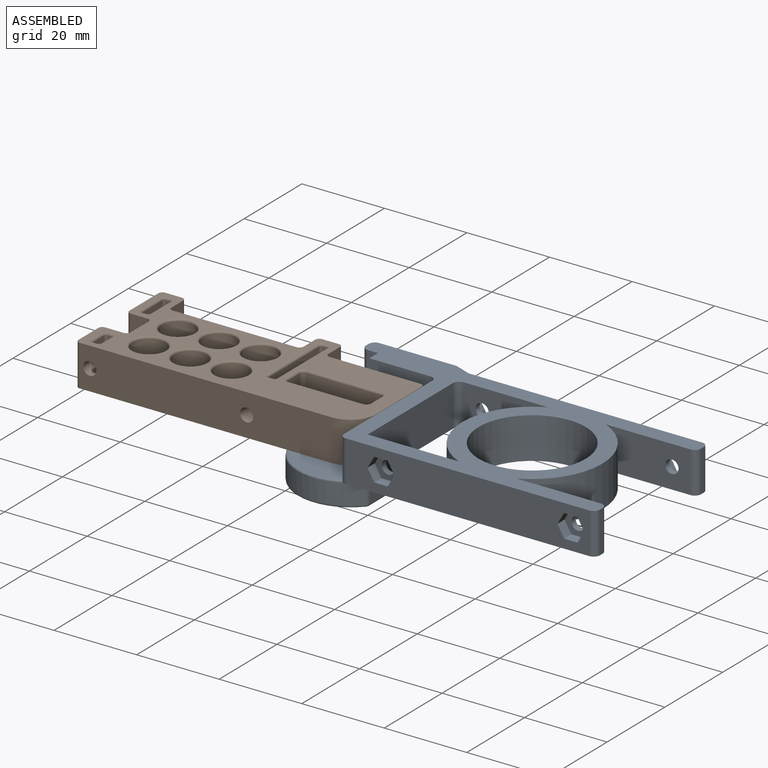
[diagram: assembled view]
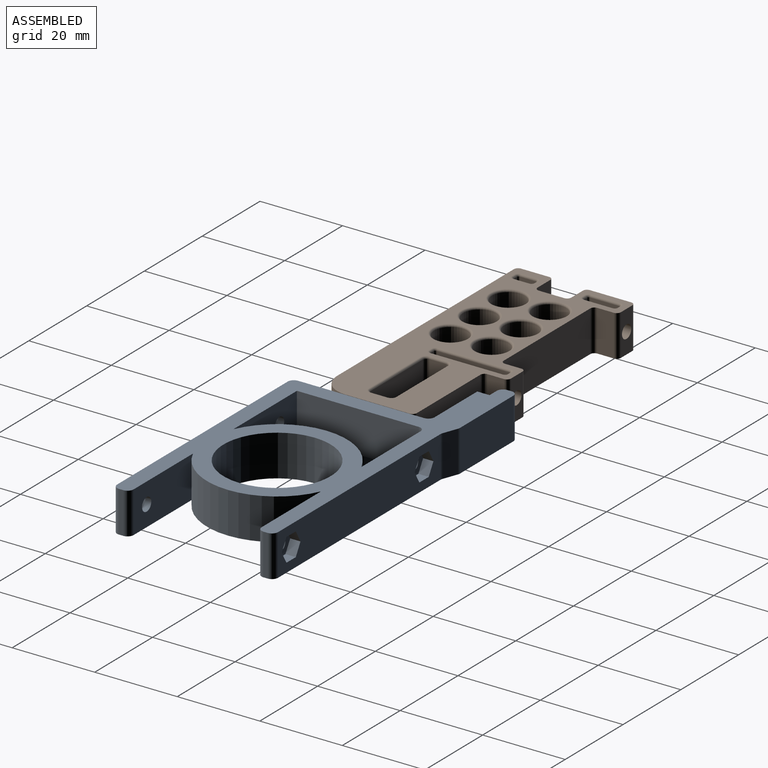
[diagram: assembled view, second angle]
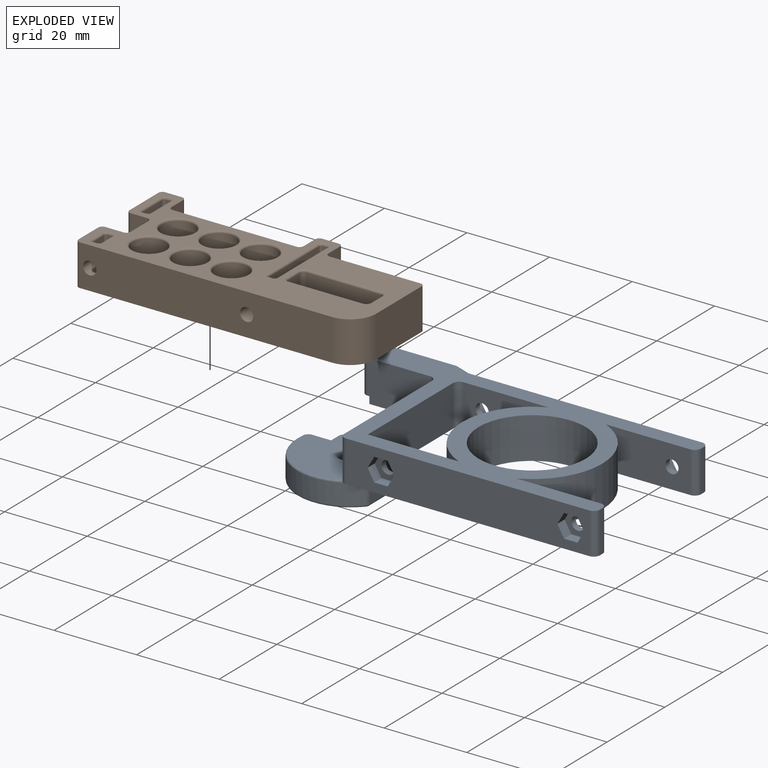
[diagram: exploded view]
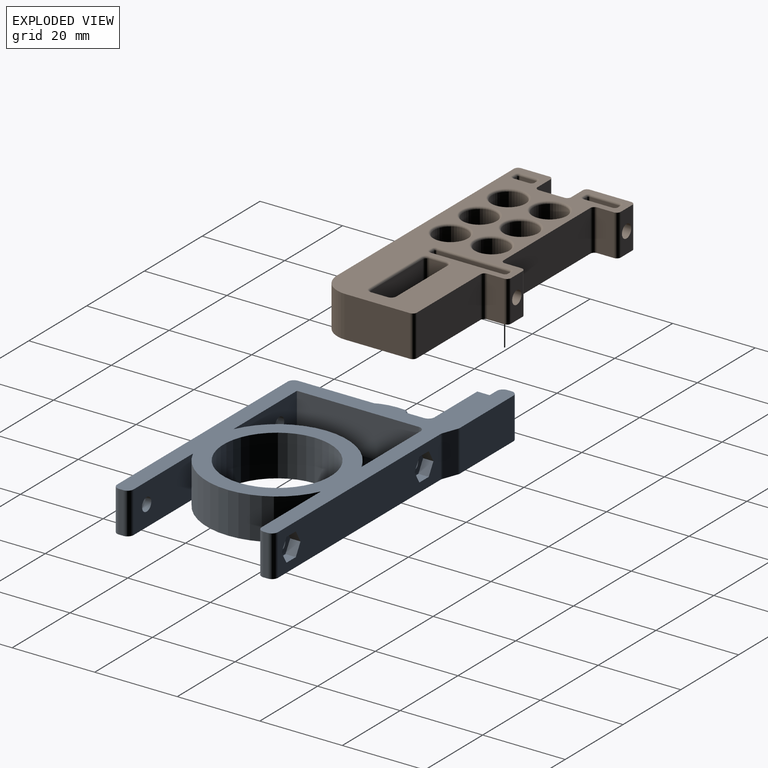
[diagram: exploded view, second angle]
ASSEMBLY  parts=2 mates=2
PART A: 93 faces, bbox 82.3x42.1x16 mm
  f0: cylinder r=1.57mm len=3.15mm, axis (0,0,-1), area 29.7mm2, adj f9,f61
  f1: plane 59x10mm, normal (0,-1,0), area 535.1mm2, adj f10,f27,f42,f43,f44,f45,f46,f47
  f2: plane 56.23x10mm, normal (0,1,0), area 507.4mm2, adj f10,f27,f28,f29,f30,f31,f32,f33
  f3: cylinder r=13mm len=22.61mm, axis (0,0,-1), area 166.9mm2, adj f10,f71,f74,f77,f81,f87
  f4: plane 29.5x15.5mm, normal (1,0,0), area 367.9mm2, adj f10,f22,f27,f64,f74,f75,f78
  f5: plane 14x5.5mm, normal (0,1,0), area 71.2mm2, adj f10,f12,f75,f76,f82,f88
  f6: plane 5x2.5mm, normal (-1,0,0), area 12.5mm2, adj f7,f76,f86,f92
  f7: plane 5x4.4mm, normal (0,1,0), area 22mm2, adj f6,f77,f85,f91
  f8: plane 19x18.5mm, normal (0,0,1), area 240.1mm2, adj f12,f62,f87,f88,f89,f90,f91,f92
  f9: plane 22x19mm, normal (0,0,-1), area 339.2mm2, adj f0,f78,f79,f80,f81,f82,f83,f84
  f10: plane 82.27x40.5mm, normal (0,0,-1), area 1031.2mm2, adj f1,f2,f3,f4,f5,f11,f12,f13
  f11: plane 14.77x10mm, normal (0,-1,0), area 147.7mm2, adj f10,f24,f27,f63
  f12: plane 30.5x10.5mm, normal (-1,0,0), area 305.1mm2, adj f5,f8,f10,f27,f63,f71,f87,f88
  f13: plane 10x1mm, normal (1,0,0), area 10mm2, adj f10,f27,f72,f73
  f14: plane 20.52x10mm, normal (0,1,0), area 197.1mm2, adj f10,f15,f27,f57,f73
  f15: cylinder r=17mm len=31mm, axis (0,0,-1), area 390.2mm2, adj f10,f14,f16,f27
  f16: plane 20.52x10mm, normal (0,-1,0), area 197.1mm2, adj f10,f15,f27,f59,f65
  f17: plane 10x1mm, normal (1,0,0), area 10mm2, adj f10,f27,f65,f66
  f18: plane 10x3.51mm, normal (0.35,0.94,0), area 37.4mm2, adj f10,f27,f67,f68
  f19: plane 18.48x10mm, normal (0,1,0), area 184.8mm2, adj f10,f27,f68,f69
  f20: plane 10x1mm, normal (-1,0,0), area 10mm2, adj f10,f27,f69,f70
  f21: plane 10x2.5mm, normal (0,-1,0), area 25mm2, adj f10,f24,f27,f70
  f22: plane 22.02x10mm, normal (0,1,0), area 212.1mm2, adj f4,f10,f25,f27,f56
  f23: plane 20.52x10mm, normal (0,-1,0), area 197.1mm2, adj f10,f25,f27,f58,f64
  f24: plane 10x3mm, normal (-1,0,0), area 30mm2, adj f10,f11,f21,f27
  f25: cylinder r=17mm len=31mm, axis (0,0,-1), area 390.2mm2, adj f10,f22,f23,f27
  f26: cylinder r=13mm len=26mm, axis (0,0,-1), area 816.8mm2, adj f10,f27
  f27: plane 82.27x40.5mm, normal (0,0,1), area 1099.3mm2, adj f1,f2,f4,f11,f12,f13,f14,f15
  f28: plane 2.81x2.5mm, normal (-0.87,0,0.5), area 8.1mm2, adj f2,f29,f33,f34
  f29: plane 3.25x2.5mm, normal (0,0,1), area 8.1mm2, adj f2,f28,f30,f34
  f30: plane 2.81x2.5mm, normal (0.87,0,0.5), area 8.1mm2, adj f2,f29,f31,f34
  f31: plane 2.81x2.5mm, normal (0.87,0,-0.5), area 8.1mm2, adj f2,f30,f32,f34
  f32: plane 3.25x2.5mm, normal (0,0,-1), area 8.1mm2, adj f2,f31,f33,f34
  f33: plane 2.81x2.5mm, normal (-0.87,0,-0.5), area 8.1mm2, adj f2,f28,f32,f34
  f34: plane 6.5x5.63mm, normal (0,1,0), area 19.4mm2, adj f28,f29,f30,f31,f32,f33,f59
  f35: plane 2.81x2.5mm, normal (0.87,0,-0.5), area 8.1mm2, adj f2,f36,f40,f41
  f36: plane 3.25x2.5mm, normal (0,0,-1), area 8.1mm2, adj f2,f35,f37,f41
  f37: plane 2.81x2.5mm, normal (-0.87,0,-0.5), area 8.1mm2, adj f2,f36,f38,f41
  f38: plane 2.81x2.5mm, normal (-0.87,0,0.5), area 8.1mm2, adj f2,f37,f39,f41
  f39: plane 3.25x2.5mm, normal (0,0,1), area 8.1mm2, adj f2,f38,f40,f41
  f40: plane 2.81x2.5mm, normal (0.87,0,0.5), area 8.1mm2, adj f2,f35,f39,f41
  f41: plane 6.5x5.63mm, normal (0,1,0), area 19.4mm2, adj f35,f36,f37,f38,f39,f40,f58
  f42: plane 2.81x2.5mm, normal (-0.87,0,-0.5), area 8.1mm2, adj f1,f43,f47,f48
  f43: plane 3.25x2.5mm, normal (0,0,-1), area 8.1mm2, adj f1,f42,f44,f48
  f44: plane 2.81x2.5mm, normal (0.87,0,-0.5), area 8.1mm2, adj f1,f43,f45,f48
  f45: plane 2.81x2.5mm, normal (0.87,0,0.5), area 8.1mm2, adj f1,f44,f46,f48
  f46: plane 3.25x2.5mm, normal (0,0,1), area 8.1mm2, adj f1,f45,f47,f48
  f47: plane 2.81x2.5mm, normal (-0.87,0,0.5), area 8.1mm2, adj f1,f42,f46,f48
  f48: plane 6.5x5.63mm, normal (0,-1,0), area 19.4mm2, adj f42,f43,f44,f45,f46,f47,f57
  f49: plane 2.81x2.5mm, normal (-0.87,0,-0.5), area 8.1mm2, adj f1,f50,f54,f55
  f50: plane 3.25x2.5mm, normal (0,0,-1), area 8.1mm2, adj f1,f49,f51,f55
  f51: plane 2.81x2.5mm, normal (0.87,0,-0.5), area 8.1mm2, adj f1,f50,f52,f55
  f52: plane 2.81x2.5mm, normal (0.87,0,0.5), area 8.1mm2, adj f1,f51,f53,f55
  f53: plane 3.25x2.5mm, normal (0,0,1), area 8.1mm2, adj f1,f52,f54,f55
  f54: plane 2.81x2.5mm, normal (-0.87,0,0.5), area 8.1mm2, adj f1,f49,f53,f55
  f55: plane 6.5x5.63mm, normal (0,-1,0), area 19.4mm2, adj f49,f50,f51,f52,f53,f54,f56
  f56: cylinder r=1.6mm len=3.2mm, axis (0,1,0), area 15.1mm2, adj f22,f55
  f57: cylinder r=1.6mm len=3.2mm, axis (0,1,0), area 15.1mm2, adj f14,f48
  f58: cylinder r=1.6mm len=3.2mm, axis (0,1,0), area 15.1mm2, adj f23,f41
  f59: cylinder r=1.6mm len=3.2mm, axis (0,1,0), area 15.1mm2, adj f16,f34
  f60: cylinder r=2.5mm len=5mm, axis (0,0,1), area 23.6mm2, adj f61,f62
  f61: plane 5x5mm, normal (0,0,1), area 11.8mm2, adj f0,f60
  f62: torus R=4mm, axis (0,0,1), area 45.1mm2, adj f8,f60
  f63: cylinder r=1.5mm len=10mm, axis (0,0,1), area 23.6mm2, adj f10,f11,f12,f27
  f64: cylinder r=1.5mm len=10mm, axis (0,0,1), area 23.6mm2, adj f4,f10,f23,f27
  f65: cylinder r=1.5mm len=10mm, axis (0,0,1), area 23.6mm2, adj f10,f16,f17,f27
  f66: cylinder r=1.5mm len=10mm, axis (0,0,1), area 23.6mm2, adj f2,f10,f17,f27
  f67: cylinder r=1.5mm len=10mm, axis (0,0,1), area 5.4mm2, adj f2,f10,f18,f27
  f68: cylinder r=1.5mm len=10mm, axis (0,0,-1), area 5.4mm2, adj f10,f18,f19,f27
  f69: cylinder r=1.5mm len=10mm, axis (0,0,-1), area 23.6mm2, adj f10,f19,f20,f27
  f70: cylinder r=1.5mm len=10mm, axis (0,0,-1), area 23.6mm2, adj f10,f20,f21,f27
  f71: cylinder r=1.5mm len=10.5mm, axis (0,0,1), area 23.6mm2, adj f1,f3,f10,f12,f27,f87
  f72: cylinder r=1.5mm len=10mm, axis (0,0,-1), area 23.6mm2, adj f1,f10,f13,f27
  f73: cylinder r=1.5mm len=10mm, axis (0,0,-1), area 23.6mm2, adj f10,f13,f14,f27
  f74: cylinder r=1.5mm len=5.5mm, axis (0,0,-1), area 6.1mm2, adj f3,f4,f10,f79
  f75: cylinder r=1.5mm len=5.5mm, axis (0,0,-1), area 13mm2, adj f4,f5,f10,f80
  f76: cylinder r=1.5mm len=5mm, axis (0,0,1), area 11.8mm2, adj f5,f6,f84,f90
  f77: cylinder r=1.5mm len=5mm, axis (0,0,-1), area 10.8mm2, adj f3,f7,f83,f89
  f78: cylinder r=0.5mm len=13.25mm, axis (0,1,0), area 10.4mm2, adj f4,f9,f79,f80
  f79: torus R=1mm, axis (0,0,1), area 0.8mm2, adj f9,f74,f78,f81
  f80: torus R=1mm, axis (0,0,1), area 1.6mm2, adj f9,f75,f78,f82
  f81: torus R=12.5mm, axis (0,0,1), area 25.5mm2, adj f3,f9,f79,f83
  f82: cylinder r=0.5mm len=14mm, axis (-1,0,0), area 11mm2, adj f5,f9,f80,f84
  f83: torus R=1mm, axis (0,0,1), area 1.5mm2, adj f9,f77,f81,f85
  f84: torus R=1mm, axis (0,0,1), area 1.6mm2, adj f9,f76,f82,f86
  f85: cylinder r=0.5mm len=4.9mm, axis (-1,0,0), area 3.6mm2, adj f7,f9,f83,f86
  f86: cylinder r=0.5mm len=3mm, axis (0,-1,0), area 2.1mm2, adj f6,f9,f84,f85
  f87: torus R=12.5mm, axis (0,0,1), area 22.1mm2, adj f3,f8,f12,f71,f89
  f88: cylinder r=0.5mm len=11.5mm, axis (1,0,0), area 9mm2, adj f5,f8,f12,f90
  f89: torus R=1mm, axis (0,0,1), area 1.5mm2, adj f8,f77,f87,f91
  f90: torus R=1mm, axis (0,0,1), area 1.6mm2, adj f8,f76,f88,f92
  f91: cylinder r=0.5mm len=4.9mm, axis (1,0,0), area 3.6mm2, adj f7,f8,f89,f92
  f92: cylinder r=0.5mm len=3mm, axis (0,1,0), area 2.1mm2, adj f6,f8,f90,f91
PART B: 217 faces, bbox 68.4x29x11.6 mm
  f0: cylinder r=1.6mm len=29mm, axis (0,1,0), area 197.3mm2, adj f17,f27,f32,f175,f179,f181,f183,f184
  f1: cylinder r=1.6mm len=8.82mm, axis (0,1,0), area 60.7mm2, adj f27,f40,f138,f143,f144,f147,f148,f150
  f2: cylinder r=1.6mm len=12mm, axis (0,1,0), area 76.5mm2, adj f36,f38,f98,f103,f104,f107,f108,f110
  f3: plane 68.44x29mm, normal (0,0,-1), area 950.3mm2, adj f17,f27,f28,f29,f30,f31,f32,f33
  f4: plane 68.44x29mm, normal (0,0,1), area 954.5mm2, adj f27,f28,f29,f30,f31,f32,f33,f34
  f5: plane 2.46x1mm, normal (0,1,0), area 2.4mm2, adj f93,f97,f98,f99
  f6: plane 7x3.03mm, normal (1,0,0), area 21.2mm2, adj f96,f97,f106,f107
  f7: plane 7x3.03mm, normal (1,0,0), area 21.2mm2, adj f119,f120,f128,f129
  f8: plane 2.46x1mm, normal (0,-1,0), area 2.4mm2, adj f101,f106,f109,f112
  f9: plane 2.46x1mm, normal (0,1,0), area 2.4mm2, adj f133,f137,f138,f139
  f10: plane 3.82x3.03mm, normal (1,0,0), area 11.6mm2, adj f136,f137,f146,f147
  f11: plane 3.82x3.03mm, normal (1,0,0), area 11.6mm2, adj f159,f160,f168,f169
  f12: plane 2.46x1mm, normal (0,-1,0), area 2.4mm2, adj f141,f146,f149,f152
  f13: plane 7x3.03mm, normal (-1,0,0), area 21.2mm2, adj f99,f100,f108,f109
  f14: plane 7x3.03mm, normal (-1,0,0), area 21.2mm2, adj f116,f117,f126,f127
  f15: plane 3.82x3.03mm, normal (-1,0,0), area 11.6mm2, adj f139,f140,f148,f149
  f16: plane 3.82x3.03mm, normal (-1,0,0), area 11.6mm2, adj f156,f157,f166,f167
  f17: plane 19.5x3.75mm, normal (-1,0,0), area 69.6mm2, adj f0,f3,f19,f22,f173,f175,f178,f184
  f18: plane 17.5x3.03mm, normal (-1,0,0), area 53mm2, adj f191,f192,f200,f201
  f19: plane 2.65x1.5mm, normal (0,1,0), area 3.7mm2, adj f17,f178,f182,f184
  f20: plane 17.5x3.03mm, normal (1,0,0), area 53mm2, adj f176,f177,f181,f182
  f21: plane 17.5x3.03mm, normal (1,0,0), area 53mm2, adj f188,f189,f198,f199
  f22: plane 2.65x1.5mm, normal (0,-1,0), area 3.7mm2, adj f17,f173,f175,f176
  f23: plane 2.46x1mm, normal (0,1,0), area 2.4mm2, adj f193,f198,f201,f204
  f24: plane 9x4mm, normal (-1,0,0), area 36mm2, adj f73,f76,f80,f88
  f25: plane 18x9mm, normal (0,1,0), area 162mm2, adj f73,f74,f77,f85
  f26: plane 9x4mm, normal (1,0,0), area 36mm2, adj f74,f75,f81,f89
  f27: plane 61.32x10mm, normal (0,-1,0), area 597.1mm2, adj f0,f1,f3,f4,f58,f72
  f28: cylinder r=6.3mm len=10mm, axis (0,0,-1), area 94.6mm2, adj f3,f4,f58,f59
  f29: plane 15.88x10mm, normal (1,0,0), area 158.8mm2, adj f3,f4,f59,f60
  f30: plane 22x10mm, normal (0,1,0), area 220mm2, adj f3,f4,f60,f61
  f31: plane 10x4mm, normal (1,0,0), area 40mm2, adj f3,f4,f61,f62
  f32: plane 10x4mm, normal (0,1,0), area 32mm2, adj f0,f3,f4,f62,f63
  f33: plane 10x4mm, normal (-1,0,0), area 40mm2, adj f3,f4,f63,f64
  f34: plane 30x10mm, normal (0,1,0), area 300mm2, adj f3,f4,f64,f65
  f35: plane 10x4mm, normal (1,0,0), area 40mm2, adj f3,f4,f65,f66
  f36: plane 10x4mm, normal (0,1,0), area 32mm2, adj f2,f3,f4,f66,f67
  f37: plane 10x10mm, normal (-1,0,0), area 100mm2, adj f3,f4,f67,f68
  f38: plane 10x4mm, normal (0,-1,0), area 32mm2, adj f2,f3,f4,f68,f69
  f39: plane 10x6.18mm, normal (-1,0,0), area 61.8mm2, adj f3,f4,f69,f70
  f40: plane 10x4.44mm, normal (0,1,0), area 36.3mm2, adj f1,f3,f4,f70,f71
  f41: plane 2.46x1mm, normal (0,1,0), area 2.4mm2, adj f118,f127,f128,f132
  f42: plane 2.46x1mm, normal (0,-1,0), area 2.4mm2, adj f113,f116,f120,f121
  f43: plane 2.46x1mm, normal (0,1,0), area 2.4mm2, adj f158,f167,f168,f172
  f44: plane 2.46x1mm, normal (0,-1,0), area 2.4mm2, adj f153,f156,f160,f161
  f45: plane 18x9mm, normal (0,-1,0), area 162mm2, adj f75,f76,f84,f92
  f46: plane 10x6.82mm, normal (-1,0,0), area 68.2mm2, adj f3,f4,f71,f72
  f47: cylinder r=4mm len=9mm, axis (0,0,-1), area 226.2mm2, adj f210,f216
  f48: cylinder r=4mm len=9mm, axis (0,0,-1), area 226.2mm2, adj f209,f215
  f49: cylinder r=4mm len=9mm, axis (0,0,-1), area 226.2mm2, adj f208,f214
  f50: cylinder r=4mm len=9mm, axis (0,0,-1), area 226.2mm2, adj f207,f213
  f51: cylinder r=4mm len=9mm, axis (0,0,-1), area 226.2mm2, adj f206,f212
  f52: cylinder r=4mm len=9mm, axis (0,0,-1), area 226.2mm2, adj f205,f211
  f53: plane 2.46x1mm, normal (0,-1,0), area 2.4mm2, adj f185,f189,f190,f191
  f54: cylinder r=1.57mm len=6mm, axis (0,0,1), area 59.4mm2, adj f56,f57
  f55: cylinder r=2.08mm len=4.15mm, axis (0,0,1), area 8.3mm2, adj f3,f57
  f56: plane 3.15x3.15mm, normal (0,0,-1), area 7.8mm2, adj f54
  f57: torus R=1.07mm, axis (0,0,-1), area 12.5mm2, adj f54,f55
  f58: cylinder r=1mm len=10mm, axis (0,0,-1), area 0.3mm2, adj f3,f4,f27,f28
  f59: cylinder r=1mm len=10mm, axis (0,0,-1), area 0.3mm2, adj f3,f4,f28,f29
  f60: cylinder r=1mm len=10mm, axis (0,0,-1), area 15.7mm2, adj f3,f4,f29,f30
  f61: cylinder r=1mm len=10mm, axis (0,0,1), area 15.7mm2, adj f3,f4,f30,f31
  f62: cylinder r=1mm len=10mm, axis (0,0,-1), area 15.7mm2, adj f3,f4,f31,f32
  f63: cylinder r=1mm len=10mm, axis (0,0,-1), area 15.7mm2, adj f3,f4,f32,f33
  f64: cylinder r=1mm len=10mm, axis (0,0,1), area 15.7mm2, adj f3,f4,f33,f34
  f65: cylinder r=1mm len=10mm, axis (0,0,1), area 15.7mm2, adj f3,f4,f34,f35
  f66: cylinder r=1mm len=10mm, axis (0,0,1), area 15.7mm2, adj f3,f4,f35,f36
  f67: cylinder r=1mm len=10mm, axis (0,0,1), area 15.7mm2, adj f3,f4,f36,f37
  f68: cylinder r=1mm len=10mm, axis (0,0,-1), area 15.7mm2, adj f3,f4,f37,f38
  f69: cylinder r=1mm len=10mm, axis (0,0,-1), area 15.7mm2, adj f3,f4,f38,f39
  f70: cylinder r=1mm len=10mm, axis (0,0,1), area 15.7mm2, adj f3,f4,f39,f40
  f71: cylinder r=1mm len=10mm, axis (0,0,1), area 15.7mm2, adj f3,f4,f40,f46
  f72: cylinder r=1mm len=10mm, axis (0,0,-1), area 15.7mm2, adj f3,f4,f27,f46
  f73: cylinder r=1mm len=9mm, axis (0,0,1), area 14.1mm2, adj f24,f25,f78,f86
  f74: cylinder r=1mm len=9mm, axis (0,0,1), area 14.1mm2, adj f25,f26,f79,f87
  f75: cylinder r=1mm len=9mm, axis (0,0,-1), area 14.1mm2, adj f26,f45,f83,f91
  f76: cylinder r=1mm len=9mm, axis (0,0,-1), area 14.1mm2, adj f24,f45,f82,f90
  f77: cylinder r=0.5mm len=18mm, axis (1,0,0), area 14.1mm2, adj f4,f25,f78,f79
  f78: torus R=1.5mm, axis (0,0,1), area 1.5mm2, adj f4,f73,f77,f80
  f79: torus R=1.5mm, axis (0,0,1), area 1.5mm2, adj f4,f74,f77,f81
  f80: cylinder r=0.5mm len=4mm, axis (0,1,0), area 3.1mm2, adj f4,f24,f78,f82
  f81: cylinder r=0.5mm len=4mm, axis (0,-1,0), area 3.1mm2, adj f4,f26,f79,f83
  f82: torus R=1.5mm, axis (0,0,1), area 1.5mm2, adj f4,f76,f80,f84
  f83: torus R=1.5mm, axis (0,0,1), area 1.5mm2, adj f4,f75,f81,f84
  f84: cylinder r=0.5mm len=18mm, axis (-1,0,0), area 14.1mm2, adj f4,f45,f82,f83
  f85: cylinder r=0.5mm len=18mm, axis (-1,0,0), area 14.1mm2, adj f3,f25,f86,f87
  f86: torus R=1.5mm, axis (0,0,1), area 1.5mm2, adj f3,f73,f85,f88
  f87: torus R=1.5mm, axis (0,0,1), area 1.5mm2, adj f3,f74,f85,f89
  f88: cylinder r=0.5mm len=4mm, axis (0,-1,0), area 3.1mm2, adj f3,f24,f86,f90
  f89: cylinder r=0.5mm len=4mm, axis (0,1,0), area 3.1mm2, adj f3,f26,f87,f91
  f90: torus R=1.5mm, axis (0,0,1), area 1.5mm2, adj f3,f76,f88,f92
  f91: torus R=1.5mm, axis (0,0,1), area 1.5mm2, adj f3,f75,f89,f92
  f92: cylinder r=0.5mm len=18mm, axis (1,0,0), area 14.1mm2, adj f3,f45,f90,f91
  f93: cylinder r=0.5mm len=1mm, axis (-1,0,0), area 0.8mm2, adj f3,f5,f94,f95
  f94: torus R=1mm, axis (0,0,1), area 0.8mm2, adj f3,f93,f96,f97
  f95: torus R=1mm, axis (0,0,1), area 0.8mm2, adj f3,f93,f99,f100
  f96: cylinder r=0.5mm len=7mm, axis (0,1,0), area 5.5mm2, adj f3,f6,f94,f102
  f97: cylinder r=0.5mm len=3.03mm, axis (0,0,1), area 2.2mm2, adj f5,f6,f94,f103
  f98: torus R=2.1mm, axis (0,1,0), area 0.7mm2, adj f2,f5,f103,f104
  f99: cylinder r=0.5mm len=3.03mm, axis (0,0,-1), area 2.2mm2, adj f5,f13,f95,f104
  f100: cylinder r=0.5mm len=7mm, axis (0,-1,0), area 5.5mm2, adj f3,f13,f95,f105
  f101: cylinder r=0.5mm len=1mm, axis (1,0,0), area 0.8mm2, adj f3,f8,f102,f105
  f102: torus R=1mm, axis (0,0,1), area 0.8mm2, adj f3,f96,f101,f106
  f103: bspline ~1.14x0.96mm, area 0.6mm2, adj f2,f97,f98,f107
  f104: bspline ~1.18x0.94mm, area 0.6mm2, adj f2,f98,f99,f108
  f105: torus R=1mm, axis (0,0,1), area 0.8mm2, adj f3,f100,f101,f109
  f106: cylinder r=0.5mm len=3.03mm, axis (0,0,-1), area 2.2mm2, adj f6,f8,f102,f110
  f107: cylinder r=0.5mm len=7mm, axis (0,1,0), area 2.7mm2, adj f2,f6,f103,f110
  f108: cylinder r=0.5mm len=7mm, axis (0,1,0), area 2.7mm2, adj f2,f13,f104,f111
  f109: cylinder r=0.5mm len=3.03mm, axis (0,0,1), area 2.2mm2, adj f8,f13,f105,f111
  f110: bspline ~1.18x0.94mm, area 0.6mm2, adj f2,f106,f107,f112
  f111: bspline ~1.14x0.96mm, area 0.6mm2, adj f2,f108,f109,f112
  f112: torus R=2.1mm, axis (0,1,0), area 0.7mm2, adj f2,f8,f110,f111
  f113: cylinder r=0.5mm len=1mm, axis (-1,0,0), area 0.8mm2, adj f4,f42,f114,f115
  f114: torus R=1mm, axis (0,0,1), area 0.8mm2, adj f4,f113,f116,f117
  f115: torus R=1mm, axis (0,0,1), area 0.8mm2, adj f4,f113,f119,f120
  f116: cylinder r=0.5mm len=3.03mm, axis (0,0,1), area 2.2mm2, adj f14,f42,f114,f122
  f117: cylinder r=0.5mm len=7mm, axis (0,1,0), area 5.5mm2, adj f4,f14,f114,f123
  f118: cylinder r=0.5mm len=1mm, axis (1,0,0), area 0.8mm2, adj f4,f41,f123,f124
  f119: cylinder r=0.5mm len=7mm, axis (0,-1,0), area 5.5mm2, adj f4,f7,f115,f124
  f120: cylinder r=0.5mm len=3.03mm, axis (0,0,-1), area 2.2mm2, adj f7,f42,f115,f125
  f121: torus R=2.1mm, axis (0,1,0), area 0.7mm2, adj f2,f42,f122,f125
  f122: bspline ~1.18x0.94mm, area 0.6mm2, adj f2,f116,f121,f126
  f123: torus R=1mm, axis (0,0,1), area 0.8mm2, adj f4,f117,f118,f127
  f124: torus R=1mm, axis (0,0,1), area 0.8mm2, adj f4,f118,f119,f128
  f125: bspline ~1.14x0.96mm, area 0.6mm2, adj f2,f120,f121,f129
  f126: cylinder r=0.5mm len=7mm, axis (0,1,0), area 2.7mm2, adj f2,f14,f122,f130
  f127: cylinder r=0.5mm len=3.03mm, axis (0,0,-1), area 2.2mm2, adj f14,f41,f123,f130
  f128: cylinder r=0.5mm len=3.03mm, axis (0,0,1), area 2.2mm2, adj f7,f41,f124,f131
  f129: cylinder r=0.5mm len=7mm, axis (0,1,0), area 2.7mm2, adj f2,f7,f125,f131
  f130: bspline ~1.14x0.96mm, area 0.6mm2, adj f2,f126,f127,f132
  f131: bspline ~1.18x0.94mm, area 0.6mm2, adj f2,f128,f129,f132
  f132: torus R=2.1mm, axis (0,1,0), area 0.7mm2, adj f2,f41,f130,f131
  f133: cylinder r=0.5mm len=1mm, axis (-1,0,0), area 0.8mm2, adj f3,f9,f134,f135
  f134: torus R=1mm, axis (0,0,1), area 0.8mm2, adj f3,f133,f136,f137
  f135: torus R=1mm, axis (0,0,1), area 0.8mm2, adj f3,f133,f139,f140
  f136: cylinder r=0.5mm len=3.82mm, axis (0,1,0), area 3mm2, adj f3,f10,f134,f142
  f137: cylinder r=0.5mm len=3.03mm, axis (0,0,1), area 2.2mm2, adj f9,f10,f134,f143
  f138: torus R=2.1mm, axis (0,1,0), area 0.7mm2, adj f1,f9,f143,f144
  f139: cylinder r=0.5mm len=3.03mm, axis (0,0,-1), area 2.2mm2, adj f9,f15,f135,f144
  f140: cylinder r=0.5mm len=3.82mm, axis (0,-1,0), area 3mm2, adj f3,f15,f135,f145
  f141: cylinder r=0.5mm len=1mm, axis (1,0,0), area 0.8mm2, adj f3,f12,f142,f145
  f142: torus R=1mm, axis (0,0,1), area 0.8mm2, adj f3,f136,f141,f146
  f143: bspline ~1.14x0.96mm, area 0.6mm2, adj f1,f137,f138,f147
  f144: bspline ~1.18x0.94mm, area 0.6mm2, adj f1,f138,f139,f148
  f145: torus R=1mm, axis (0,0,1), area 0.8mm2, adj f3,f140,f141,f149
  f146: cylinder r=0.5mm len=3.03mm, axis (0,0,-1), area 2.2mm2, adj f10,f12,f142,f150
  f147: cylinder r=0.5mm len=3.82mm, axis (0,1,0), area 1.5mm2, adj f1,f10,f143,f150
  f148: cylinder r=0.5mm len=3.82mm, axis (0,1,0), area 1.5mm2, adj f1,f15,f144,f151
  f149: cylinder r=0.5mm len=3.03mm, axis (0,0,1), area 2.2mm2, adj f12,f15,f145,f151
  f150: bspline ~1.18x0.94mm, area 0.6mm2, adj f1,f146,f147,f152
  f151: bspline ~1.14x0.96mm, area 0.6mm2, adj f1,f148,f149,f152
  f152: torus R=2.1mm, axis (0,1,0), area 0.7mm2, adj f1,f12,f150,f151
  f153: cylinder r=0.5mm len=1mm, axis (-1,0,0), area 0.8mm2, adj f4,f44,f154,f155
  f154: torus R=1mm, axis (0,0,1), area 0.8mm2, adj f4,f153,f156,f157
  f155: torus R=1mm, axis (0,0,1), area 0.8mm2, adj f4,f153,f159,f160
  f156: cylinder r=0.5mm len=3.03mm, axis (0,0,1), area 2.2mm2, adj f16,f44,f154,f162
  f157: cylinder r=0.5mm len=3.82mm, axis (0,1,0), area 3mm2, adj f4,f16,f154,f163
  f158: cylinder r=0.5mm len=1mm, axis (1,0,0), area 0.8mm2, adj f4,f43,f163,f164
  f159: cylinder r=0.5mm len=3.82mm, axis (0,-1,0), area 3mm2, adj f4,f11,f155,f164
  f160: cylinder r=0.5mm len=3.03mm, axis (0,0,-1), area 2.2mm2, adj f11,f44,f155,f165
  f161: torus R=2.1mm, axis (0,1,0), area 0.7mm2, adj f1,f44,f162,f165
  f162: bspline ~1.18x0.94mm, area 0.6mm2, adj f1,f156,f161,f166
  f163: torus R=1mm, axis (0,0,1), area 0.8mm2, adj f4,f157,f158,f167
  f164: torus R=1mm, axis (0,0,1), area 0.8mm2, adj f4,f158,f159,f168
  f165: bspline ~1.14x0.96mm, area 0.6mm2, adj f1,f160,f161,f169
  f166: cylinder r=0.5mm len=3.82mm, axis (0,1,0), area 1.5mm2, adj f1,f16,f162,f170
  f167: cylinder r=0.5mm len=3.03mm, axis (0,0,-1), area 2.2mm2, adj f16,f43,f163,f170
  f168: cylinder r=0.5mm len=3.03mm, axis (0,0,1), area 2.2mm2, adj f11,f43,f164,f171
  f169: cylinder r=0.5mm len=3.82mm, axis (0,1,0), area 1.5mm2, adj f1,f11,f165,f171
  f170: bspline ~1.14x0.96mm, area 0.6mm2, adj f1,f166,f167,f172
  f171: bspline ~1.18x0.94mm, area 0.6mm2, adj f1,f168,f169,f172
  f172: torus R=2.1mm, axis (0,1,0), area 0.7mm2, adj f1,f43,f170,f171
  f173: cylinder r=0.5mm len=1.5mm, axis (1,0,0), area 1.2mm2, adj f3,f17,f22,f174
  f174: torus R=1mm, axis (0,0,1), area 0.8mm2, adj f3,f173,f176,f177
  f175: torus R=2.1mm, axis (0,1,0), area 1.2mm2, adj f0,f17,f22,f179
  f176: cylinder r=0.5mm len=3.03mm, axis (0,0,-1), area 2.2mm2, adj f20,f22,f174,f179
  f177: cylinder r=0.5mm len=17.5mm, axis (0,1,0), area 13.7mm2, adj f3,f20,f174,f180
  f178: cylinder r=0.5mm len=1.5mm, axis (-1,0,0), area 1.2mm2, adj f3,f17,f19,f180
  f179: bspline ~1.18x0.94mm, area 0.6mm2, adj f0,f175,f176,f181
  f180: torus R=1mm, axis (0,0,1), area 0.8mm2, adj f3,f177,f178,f182
  f181: cylinder r=0.5mm len=17.5mm, axis (0,1,0), area 6.8mm2, adj f0,f20,f179,f183
  f182: cylinder r=0.5mm len=3.03mm, axis (0,0,-1), area 2.2mm2, adj f19,f20,f180,f183
  f183: bspline ~1.14x0.96mm, area 0.6mm2, adj f0,f181,f182,f184
  f184: torus R=2.1mm, axis (0,-1,0), area 1.2mm2, adj f0,f17,f19,f183
  f185: cylinder r=0.5mm len=1mm, axis (-1,0,0), area 0.8mm2, adj f4,f53,f186,f187
  f186: torus R=1mm, axis (0,0,1), area 0.8mm2, adj f4,f185,f188,f189
  f187: torus R=1mm, axis (0,0,1), area 0.8mm2, adj f4,f185,f191,f192
  f188: cylinder r=0.5mm len=17.5mm, axis (0,-1,0), area 13.7mm2, adj f4,f21,f186,f194
  f189: cylinder r=0.5mm len=3.03mm, axis (0,0,-1), area 2.2mm2, adj f21,f53,f186,f195
  f190: torus R=2.1mm, axis (0,1,0), area 0.7mm2, adj f0,f53,f195,f196
  f191: cylinder r=0.5mm len=3.03mm, axis (0,0,1), area 2.2mm2, adj f18,f53,f187,f196
  f192: cylinder r=0.5mm len=17.5mm, axis (0,1,0), area 13.7mm2, adj f4,f18,f187,f197
  f193: cylinder r=0.5mm len=1mm, axis (1,0,0), area 0.8mm2, adj f4,f23,f194,f197
  f194: torus R=1mm, axis (0,0,1), area 0.8mm2, adj f4,f188,f193,f198
  f195: bspline ~1.14x0.96mm, area 0.6mm2, adj f0,f189,f190,f199
  f196: bspline ~1.18x0.94mm, area 0.6mm2, adj f0,f190,f191,f200
  f197: torus R=1mm, axis (0,0,1), area 0.8mm2, adj f4,f192,f193,f201
  f198: cylinder r=0.5mm len=3.03mm, axis (0,0,-1), area 2.2mm2, adj f21,f23,f194,f202
  f199: cylinder r=0.5mm len=17.5mm, axis (0,1,0), area 6.8mm2, adj f0,f21,f195,f202
  f200: cylinder r=0.5mm len=17.5mm, axis (0,1,0), area 6.8mm2, adj f0,f18,f196,f203
  f201: cylinder r=0.5mm len=3.03mm, axis (0,0,1), area 2.2mm2, adj f18,f23,f197,f203
  f202: bspline ~1.18x0.94mm, area 0.6mm2, adj f0,f198,f199,f204
  f203: bspline ~1.14x0.96mm, area 0.6mm2, adj f0,f200,f201,f204
  f204: torus R=2.1mm, axis (0,-1,0), area 0.7mm2, adj f0,f23,f202,f203
  f205: torus R=4.5mm, axis (0,0,1), area 20.6mm2, adj f3,f52
  f206: torus R=4.5mm, axis (0,0,1), area 20.6mm2, adj f3,f51
  f207: torus R=4.5mm, axis (0,0,1), area 20.6mm2, adj f3,f50
  f208: torus R=4.5mm, axis (0,0,1), area 20.6mm2, adj f3,f49
  f209: torus R=4.5mm, axis (0,0,1), area 20.6mm2, adj f3,f48
  f210: torus R=4.5mm, axis (0,0,1), area 20.6mm2, adj f3,f47
  f211: torus R=4.5mm, axis (0,0,1), area 20.6mm2, adj f4,f52
  f212: torus R=4.5mm, axis (0,0,1), area 20.6mm2, adj f4,f51
  f213: torus R=4.5mm, axis (0,0,1), area 20.6mm2, adj f4,f50
  f214: torus R=4.5mm, axis (0,0,1), area 20.6mm2, adj f4,f49
  f215: torus R=4.5mm, axis (0,0,1), area 20.6mm2, adj f4,f48
  f216: torus R=4.5mm, axis (0,0,1), area 20.6mm2, adj f4,f47
PLACE A t=(30.47,7.82,-12.48)mm
PLACE B t=(-4.94,14.41,-6.48)mm
MATE cylindrical A.f0 <-> B.f54  axis (0,0,-1) through (30.47,7.82,-9.48)mm
MATE planar B.f3 <-> A.f8  axis (0,0,-1) through (4.88,13.69,-6.48)mm
